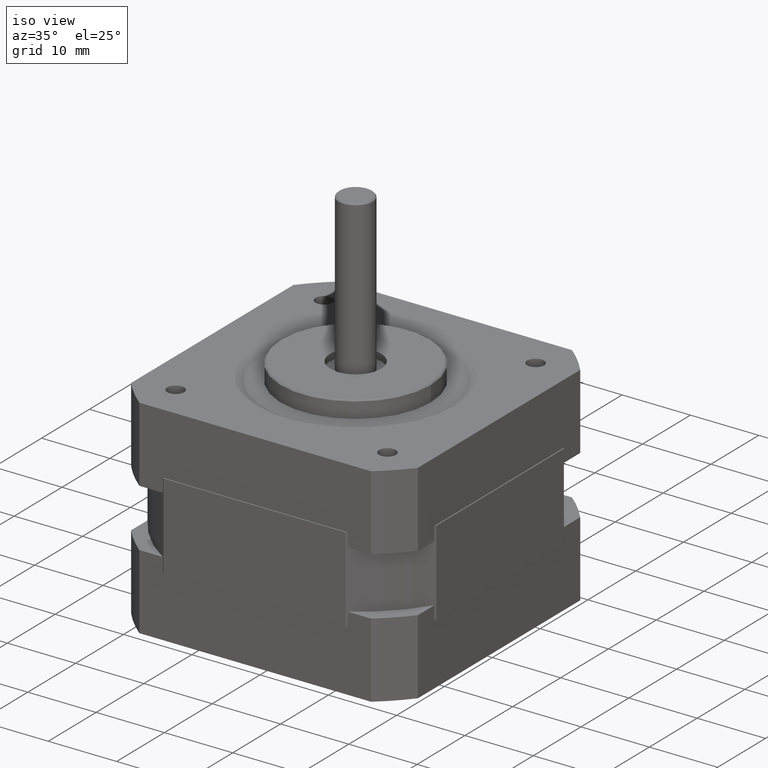
[diagram: clean part render]
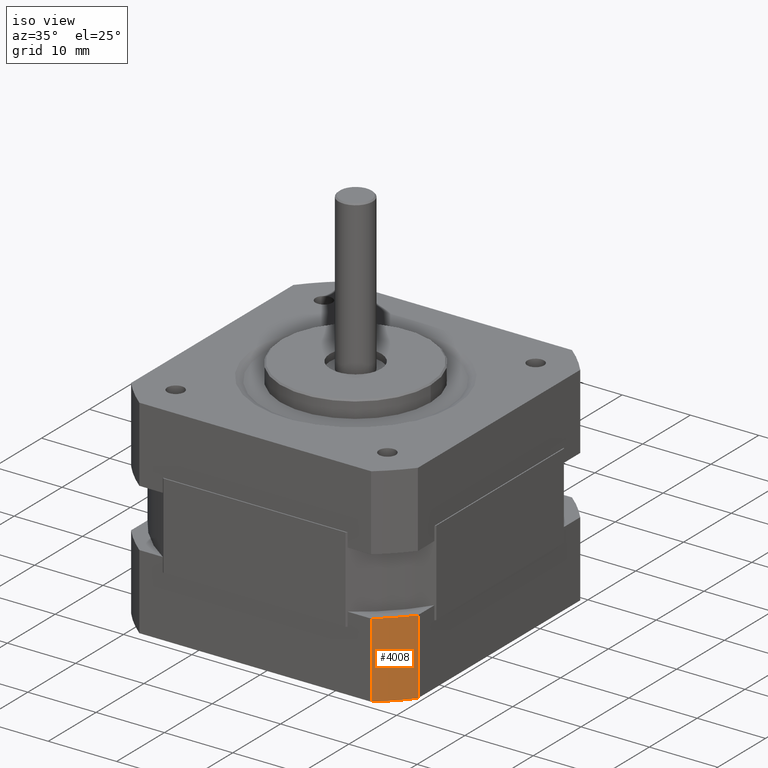
[diagram: same view with one face highlighted and labeled with its STEP entity id]
A machine part, iso view. The second image highlights one B-rep face of the part: STEP entity #4008.
In plain terms, the highlighted cylindrical surface (partial cylindrical patch) has radius 27 mm, axis along (-0, -0, -1).
Its self-contained STEP definition (entity closure, byte-faithful):
#175=LINE('',#6214,#423);
#187=LINE('',#6245,#435);
#423=VECTOR('',#4978,11.);
#435=VECTOR('',#5008,11.);
#843=CYLINDRICAL_SURFACE('',#4345,27.);
#938=FACE_OUTER_BOUND('',#1236,.T.);
#1236=EDGE_LOOP('',(#2897,#2898,#2899,#2900));
#1501=CIRCLE('',#4308,27.);
#1508=CIRCLE('',#4320,27.);
#1767=VERTEX_POINT('',#6211);
#1768=VERTEX_POINT('',#6213);
#1771=VERTEX_POINT('',#6221);
#1778=VERTEX_POINT('',#6243);
#2186=EDGE_CURVE('',#1767,#1768,#175,.T.);
#2191=EDGE_CURVE('',#1771,#1767,#1501,.T.);
#2202=EDGE_CURVE('',#1771,#1778,#187,.T.);
#2208=EDGE_CURVE('',#1778,#1768,#1508,.T.);
#2897=ORIENTED_EDGE('',*,*,#2208,.T.);
#2898=ORIENTED_EDGE('',*,*,#2186,.F.);
#2899=ORIENTED_EDGE('',*,*,#2191,.F.);
#2900=ORIENTED_EDGE('',*,*,#2202,.T.);
#4008=ADVANCED_FACE('',(#938),#843,.T.);
#4308=AXIS2_PLACEMENT_3D('',#6223,#4985,#4986);
#4320=AXIS2_PLACEMENT_3D('',#6256,#5019,#5020);
#4345=AXIS2_PLACEMENT_3D('',#6293,#5069,#5070);
#4978=DIRECTION('',(-9.034635156321E-16,-9.20284061207292E-21,-1.));
#4985=DIRECTION('center_axis',(9.034635156321E-16,9.20284061207292E-21,
1.));
#4986=DIRECTION('ref_axis',(-0.777777777777778,0.628539361054709,7.02688061144075E-16));
#5008=DIRECTION('',(-9.034635156321E-16,-9.20284061207292E-21,-1.));
#5019=DIRECTION('center_axis',(9.034635156321E-16,9.20284061207292E-21,
1.));
#5020=DIRECTION('ref_axis',(-0.777777777777778,0.628539361054709,7.02688061144075E-16));
#5069=DIRECTION('center_axis',(-9.034635156321E-16,-9.20284061207292E-21,
-1.));
#5070=DIRECTION('ref_axis',(-0.777777777777778,0.628539361054709,7.02688061144075E-16));
#6211=CARTESIAN_POINT('',(21.,-16.9705627484771,-13.5));
#6213=CARTESIAN_POINT('',(21.,-16.9705627484771,-24.5));
#6214=CARTESIAN_POINT('',(21.,-16.9705627484771,-13.5));
#6221=CARTESIAN_POINT('',(16.9705627484771,-21.,-13.5));
#6223=CARTESIAN_POINT('Origin',(-1.41415715095995E-14,8.02526056812936E-15,
-13.5));
#6243=CARTESIAN_POINT('',(16.9705627484771,-21.,-24.5));
#6245=CARTESIAN_POINT('',(16.9705627484771,-21.,-13.5));
#6256=CARTESIAN_POINT('Origin',(-2.40796701815525E-14,8.02515933688262E-15,
-24.5));
#6293=CARTESIAN_POINT('Origin',(-1.41415715095995E-14,8.02526056812936E-15,
-13.5));